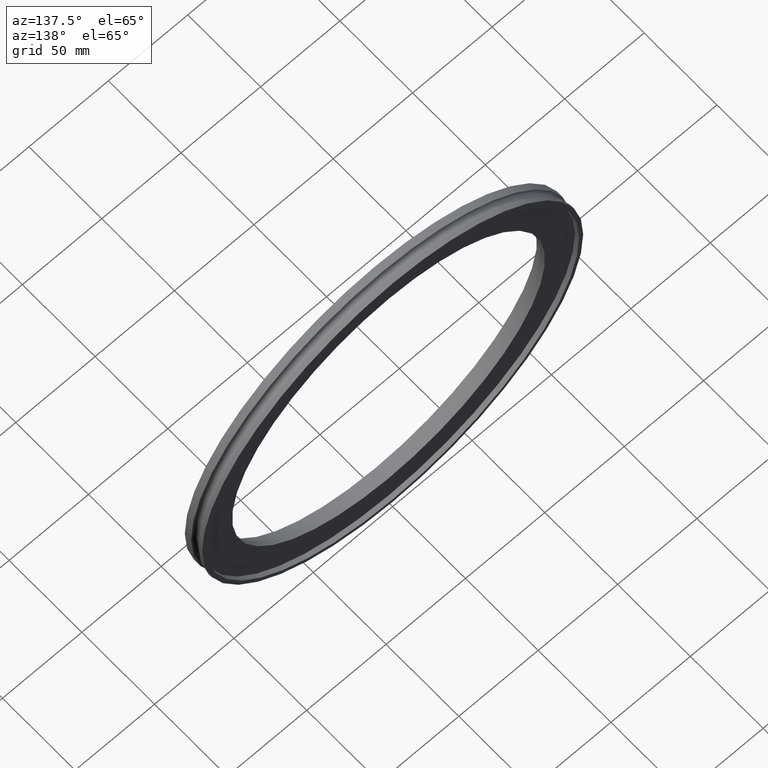
[diagram: clean part render]
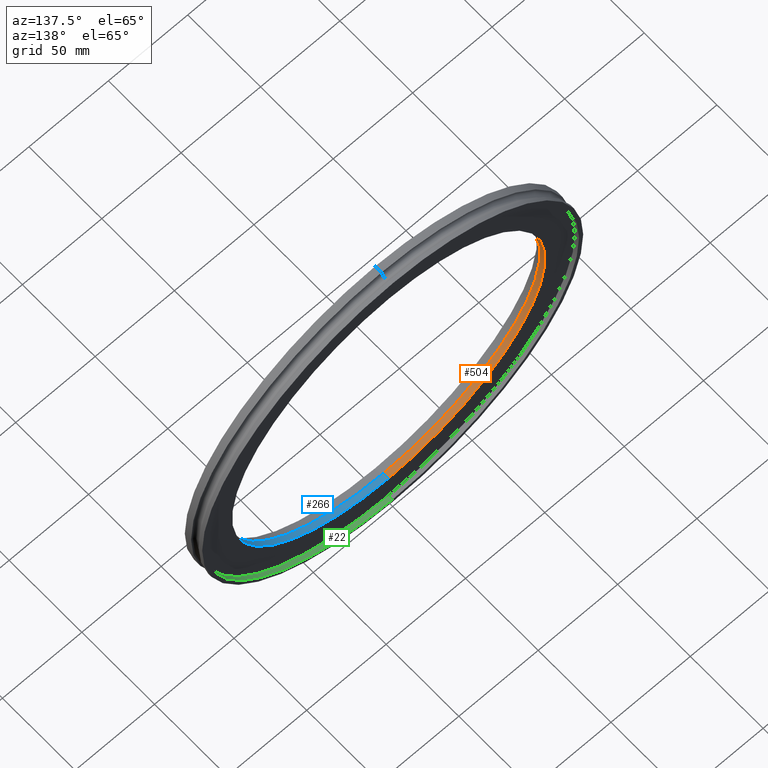
[diagram: same view with three faces highlighted in distinct colors, each labeled with its STEP entity id]
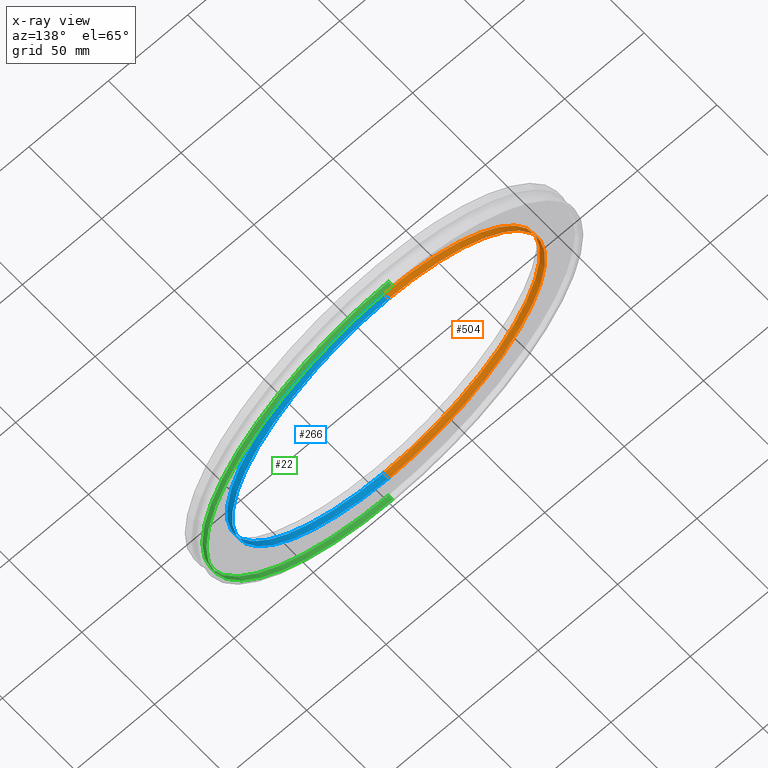
[diagram: x-ray of the same camera — body ghosted, the three highlighted faces saturated]
A machine part, auxiliary view with three faces highlighted in distinct colors.
The next image is the same camera in x-ray (body ghosted, the three faces saturated) — at least one of them is partly hidden behind the body in this view.
Their STEP definitions:

[orange] entity #504 — the highlighted cylindrical surface (partial cylindrical patch) has radius 98.552 mm, axis along (-0, 1, -0).
#11 = DIRECTION ( 'NONE',  ( -0.000000000000000000, 1.000000000000000000, -0.000000000000000000 ) ) ;
#30 = AXIS2_PLACEMENT_3D ( 'NONE', #697, #273, #480 ) ;
#34 = CARTESIAN_POINT ( 'NONE',  ( 4.751629580691730769E-16, -0.2500000000000001110, -3.880000000000000338 ) ) ;
#43 = CIRCLE ( 'NONE', #251, 3.880000000000000338 ) ;
#51 = CARTESIAN_POINT ( 'NONE',  ( 0.000000000000000000, -0.2500000000000001110, 3.880000000000000338 ) ) ;
#69 = EDGE_CURVE ( 'NONE', #642, #365, #43, .T. ) ;
#71 = EDGE_CURVE ( 'NONE', #136, #107, #139, .T. ) ;
#107 = VERTEX_POINT ( 'NONE', #632 ) ;
#136 = VERTEX_POINT ( 'NONE', #551 ) ;
#139 = CIRCLE ( 'NONE', #30, 3.880000000000000338 ) ;
#161 = ORIENTED_EDGE ( 'NONE', *, *, #69, .F. ) ;
#184 = CYLINDRICAL_SURFACE ( 'NONE', #390, 3.880000000000000338 ) ;
#193 = LINE ( 'NONE', #345, #489 ) ;
#230 = CARTESIAN_POINT ( 'NONE',  ( 0.000000000000000000, -0.2500000000000001110, 0.000000000000000000 ) ) ;
#234 = DIRECTION ( 'NONE',  ( -0.000000000000000000, 1.000000000000000000, -0.000000000000000000 ) ) ;
#251 = AXIS2_PLACEMENT_3D ( 'NONE', #230, #11, #598 ) ;
#257 = DIRECTION ( 'NONE',  ( -0.000000000000000000, 1.000000000000000000, -0.000000000000000000 ) ) ;
#262 = ORIENTED_EDGE ( 'NONE', *, *, #645, .T. ) ;
#268 = ORIENTED_EDGE ( 'NONE', *, *, #671, .F. ) ;
#273 = DIRECTION ( 'NONE',  ( -0.000000000000000000, 1.000000000000000000, -0.000000000000000000 ) ) ;
#307 = CARTESIAN_POINT ( 'NONE',  ( 4.751629580691730769E-16, 0.000000000000000000, -3.880000000000000338 ) ) ;
#345 = CARTESIAN_POINT ( 'NONE',  ( 0.000000000000000000, 0.000000000000000000, 3.880000000000000338 ) ) ;
#358 = EDGE_LOOP ( 'NONE', ( #161, #262, #420, #268 ) ) ;
#365 = VERTEX_POINT ( 'NONE', #51 ) ;
#390 = AXIS2_PLACEMENT_3D ( 'NONE', #556, #234, #659 ) ;
#398 = DIRECTION ( 'NONE',  ( -0.000000000000000000, 1.000000000000000000, -0.000000000000000000 ) ) ;
#420 = ORIENTED_EDGE ( 'NONE', *, *, #71, .T. ) ;
#421 = VECTOR ( 'NONE', #257, 39.37007874015748143 ) ;
#480 = DIRECTION ( 'NONE',  ( 0.000000000000000000, 0.000000000000000000, 1.000000000000000000 ) ) ;
#489 = VECTOR ( 'NONE', #398, 39.37007874015748143 ) ;
#504 = ADVANCED_FACE ( 'NONE', ( #668 ), #184, .F. ) ;
#520 = LINE ( 'NONE', #307, #421 ) ;
#551 = CARTESIAN_POINT ( 'NONE',  ( 4.751629580691730769E-16, -0.1100000000000000006, -3.880000000000000338 ) ) ;
#556 = CARTESIAN_POINT ( 'NONE',  ( 0.000000000000000000, 0.000000000000000000, 0.000000000000000000 ) ) ;
#598 = DIRECTION ( 'NONE',  ( 0.000000000000000000, 0.000000000000000000, 1.000000000000000000 ) ) ;
#632 = CARTESIAN_POINT ( 'NONE',  ( 0.000000000000000000, -0.1100000000000000006, 3.880000000000000338 ) ) ;
#642 = VERTEX_POINT ( 'NONE', #34 ) ;
#645 = EDGE_CURVE ( 'NONE', #642, #136, #520, .T. ) ;
#659 = DIRECTION ( 'NONE',  ( 0.000000000000000000, 0.000000000000000000, 1.000000000000000000 ) ) ;
#668 = FACE_OUTER_BOUND ( 'NONE', #358, .T. ) ;
#671 = EDGE_CURVE ( 'NONE', #365, #107, #193, .T. ) ;
#697 = CARTESIAN_POINT ( 'NONE',  ( 0.000000000000000000, -0.1100000000000000006, 0.000000000000000000 ) ) ;

[blue] entity #266 — the highlighted cylindrical surface (partial cylindrical patch) has radius 98.552 mm, axis along (-0, 1, -0).
#24 = AXIS2_PLACEMENT_3D ( 'NONE', #256, #357, #407 ) ;
#34 = CARTESIAN_POINT ( 'NONE',  ( 4.751629580691730769E-16, -0.2500000000000001110, -3.880000000000000338 ) ) ;
#46 = ORIENTED_EDGE ( 'NONE', *, *, #645, .F. ) ;
#51 = CARTESIAN_POINT ( 'NONE',  ( 0.000000000000000000, -0.2500000000000001110, 3.880000000000000338 ) ) ;
#107 = VERTEX_POINT ( 'NONE', #632 ) ;
#112 = CIRCLE ( 'NONE', #24, 3.880000000000000338 ) ;
#134 = EDGE_CURVE ( 'NONE', #365, #642, #112, .T. ) ;
#136 = VERTEX_POINT ( 'NONE', #551 ) ;
#153 = ORIENTED_EDGE ( 'NONE', *, *, #671, .T. ) ;
#168 = ORIENTED_EDGE ( 'NONE', *, *, #439, .T. ) ;
#193 = LINE ( 'NONE', #345, #489 ) ;
#216 = AXIS2_PLACEMENT_3D ( 'NONE', #275, #229, #640 ) ;
#229 = DIRECTION ( 'NONE',  ( -0.000000000000000000, 1.000000000000000000, -0.000000000000000000 ) ) ;
#232 = EDGE_LOOP ( 'NONE', ( #46, #263, #153, #168 ) ) ;
#256 = CARTESIAN_POINT ( 'NONE',  ( 0.000000000000000000, -0.2500000000000001110, 0.000000000000000000 ) ) ;
#257 = DIRECTION ( 'NONE',  ( -0.000000000000000000, 1.000000000000000000, -0.000000000000000000 ) ) ;
#261 = CARTESIAN_POINT ( 'NONE',  ( 0.000000000000000000, 0.000000000000000000, 0.000000000000000000 ) ) ;
#263 = ORIENTED_EDGE ( 'NONE', *, *, #134, .F. ) ;
#266 = ADVANCED_FACE ( 'NONE', ( #513 ), #523, .F. ) ;
#275 = CARTESIAN_POINT ( 'NONE',  ( 0.000000000000000000, -0.1100000000000000006, 0.000000000000000000 ) ) ;
#307 = CARTESIAN_POINT ( 'NONE',  ( 4.751629580691730769E-16, 0.000000000000000000, -3.880000000000000338 ) ) ;
#324 = AXIS2_PLACEMENT_3D ( 'NONE', #261, #627, #465 ) ;
#345 = CARTESIAN_POINT ( 'NONE',  ( 0.000000000000000000, 0.000000000000000000, 3.880000000000000338 ) ) ;
#357 = DIRECTION ( 'NONE',  ( -0.000000000000000000, 1.000000000000000000, -0.000000000000000000 ) ) ;
#365 = VERTEX_POINT ( 'NONE', #51 ) ;
#398 = DIRECTION ( 'NONE',  ( -0.000000000000000000, 1.000000000000000000, -0.000000000000000000 ) ) ;
#407 = DIRECTION ( 'NONE',  ( 0.000000000000000000, 0.000000000000000000, 1.000000000000000000 ) ) ;
#408 = CIRCLE ( 'NONE', #216, 3.880000000000000338 ) ;
#421 = VECTOR ( 'NONE', #257, 39.37007874015748143 ) ;
#439 = EDGE_CURVE ( 'NONE', #107, #136, #408, .T. ) ;
#465 = DIRECTION ( 'NONE',  ( 0.000000000000000000, 0.000000000000000000, 1.000000000000000000 ) ) ;
#489 = VECTOR ( 'NONE', #398, 39.37007874015748143 ) ;
#513 = FACE_OUTER_BOUND ( 'NONE', #232, .T. ) ;
#520 = LINE ( 'NONE', #307, #421 ) ;
#523 = CYLINDRICAL_SURFACE ( 'NONE', #324, 3.880000000000000338 ) ;
#551 = CARTESIAN_POINT ( 'NONE',  ( 4.751629580691730769E-16, -0.1100000000000000006, -3.880000000000000338 ) ) ;
#627 = DIRECTION ( 'NONE',  ( -0.000000000000000000, 1.000000000000000000, -0.000000000000000000 ) ) ;
#632 = CARTESIAN_POINT ( 'NONE',  ( 0.000000000000000000, -0.1100000000000000006, 3.880000000000000338 ) ) ;
#640 = DIRECTION ( 'NONE',  ( 0.000000000000000000, 0.000000000000000000, 1.000000000000000000 ) ) ;
#642 = VERTEX_POINT ( 'NONE', #34 ) ;
#645 = EDGE_CURVE ( 'NONE', #642, #136, #520, .T. ) ;
#671 = EDGE_CURVE ( 'NONE', #365, #107, #193, .T. ) ;

[green] entity #22 — the highlighted cylindrical surface (partial cylindrical patch) has radius 117.399 mm, axis along (-0, 1, -0).
#20 = DIRECTION ( 'NONE',  ( -0.000000000000000000, 1.000000000000000000, -0.000000000000000000 ) ) ;
#21 = DIRECTION ( 'NONE',  ( 0.000000000000000000, 0.000000000000000000, 1.000000000000000000 ) ) ;
#22 = ADVANCED_FACE ( 'NONE', ( #493 ), #651, .F. ) ;
#25 = VERTEX_POINT ( 'NONE', #437 ) ;
#28 = AXIS2_PLACEMENT_3D ( 'NONE', #122, #173, #182 ) ;
#40 = AXIS2_PLACEMENT_3D ( 'NONE', #135, #336, #603 ) ;
#76 = VECTOR ( 'NONE', #20, 39.37007874015748143 ) ;
#121 = CARTESIAN_POINT ( 'NONE',  ( 5.660317505659066563E-16, 0.000000000000000000, -4.621999999999999886 ) ) ;
#122 = CARTESIAN_POINT ( 'NONE',  ( 0.000000000000000000, 0.000000000000000000, 0.000000000000000000 ) ) ;
#129 = DIRECTION ( 'NONE',  ( -0.000000000000000000, 1.000000000000000000, -0.000000000000000000 ) ) ;
#135 = CARTESIAN_POINT ( 'NONE',  ( 0.000000000000000000, -0.1100000000000000006, 0.000000000000000000 ) ) ;
#137 = AXIS2_PLACEMENT_3D ( 'NONE', #297, #129, #21 ) ;
#146 = ORIENTED_EDGE ( 'NONE', *, *, #500, .F. ) ;
#173 = DIRECTION ( 'NONE',  ( -0.000000000000000000, 1.000000000000000000, -0.000000000000000000 ) ) ;
#182 = DIRECTION ( 'NONE',  ( 0.000000000000000000, 0.000000000000000000, 1.000000000000000000 ) ) ;
#202 = VECTOR ( 'NONE', #327, 39.37007874015748143 ) ;
#297 = CARTESIAN_POINT ( 'NONE',  ( 0.000000000000000000, 0.000000000000000000, 0.000000000000000000 ) ) ;
#304 = CARTESIAN_POINT ( 'NONE',  ( 5.660317505659067549E-16, -0.1100000000000000006, -4.622000000000000774 ) ) ;
#321 = VERTEX_POINT ( 'NONE', #332 ) ;
#327 = DIRECTION ( 'NONE',  ( -0.000000000000000000, 1.000000000000000000, -0.000000000000000000 ) ) ;
#332 = CARTESIAN_POINT ( 'NONE',  ( 0.000000000000000000, 0.000000000000000000, 4.621999999999999886 ) ) ;
#333 = ORIENTED_EDGE ( 'NONE', *, *, #532, .F. ) ;
#336 = DIRECTION ( 'NONE',  ( -0.000000000000000000, 1.000000000000000000, -0.000000000000000000 ) ) ;
#353 = CIRCLE ( 'NONE', #40, 4.622000000000000774 ) ;
#355 = EDGE_LOOP ( 'NONE', ( #146, #333, #385, #460 ) ) ;
#360 = EDGE_CURVE ( 'NONE', #25, #321, #428, .T. ) ;
#361 = CARTESIAN_POINT ( 'NONE',  ( 5.660317505659066563E-16, 0.000000000000000000, -4.621999999999999886 ) ) ;
#385 = ORIENTED_EDGE ( 'NONE', *, *, #360, .T. ) ;
#428 = LINE ( 'NONE', #530, #202 ) ;
#434 = CIRCLE ( 'NONE', #137, 4.621999999999999886 ) ;
#437 = CARTESIAN_POINT ( 'NONE',  ( 0.000000000000000000, -0.1100000000000000006, 4.622000000000000774 ) ) ;
#460 = ORIENTED_EDGE ( 'NONE', *, *, #537, .T. ) ;
#493 = FACE_OUTER_BOUND ( 'NONE', #355, .T. ) ;
#500 = EDGE_CURVE ( 'NONE', #628, #618, #501, .T. ) ;
#501 = LINE ( 'NONE', #121, #76 ) ;
#530 = CARTESIAN_POINT ( 'NONE',  ( 0.000000000000000000, 0.000000000000000000, 4.621999999999999886 ) ) ;
#532 = EDGE_CURVE ( 'NONE', #25, #628, #353, .T. ) ;
#537 = EDGE_CURVE ( 'NONE', #321, #618, #434, .T. ) ;
#603 = DIRECTION ( 'NONE',  ( 0.000000000000000000, 0.000000000000000000, 1.000000000000000000 ) ) ;
#618 = VERTEX_POINT ( 'NONE', #361 ) ;
#628 = VERTEX_POINT ( 'NONE', #304 ) ;
#651 = CYLINDRICAL_SURFACE ( 'NONE', #28, 4.621999999999999886 ) ;